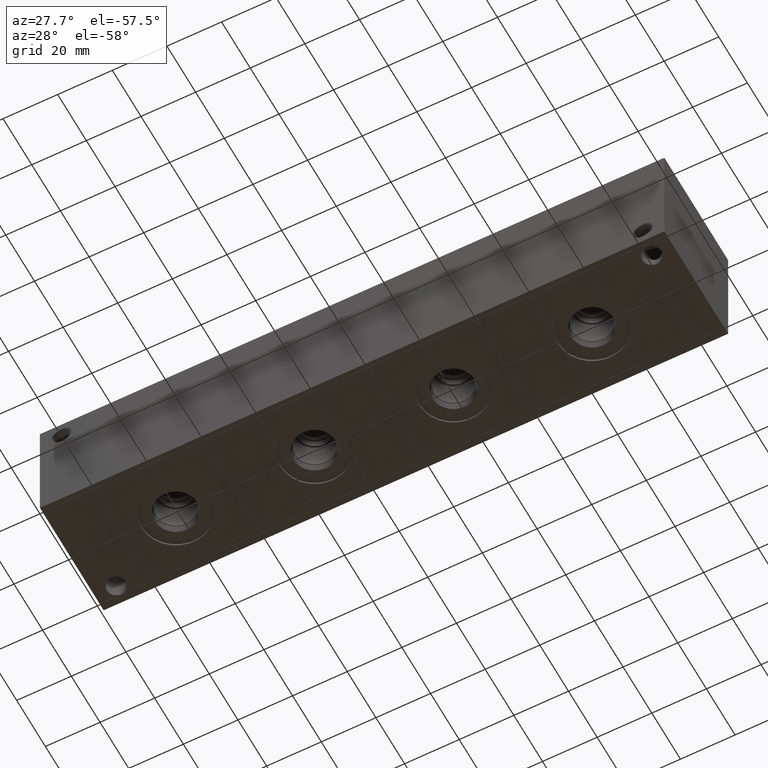
[diagram: clean part render]
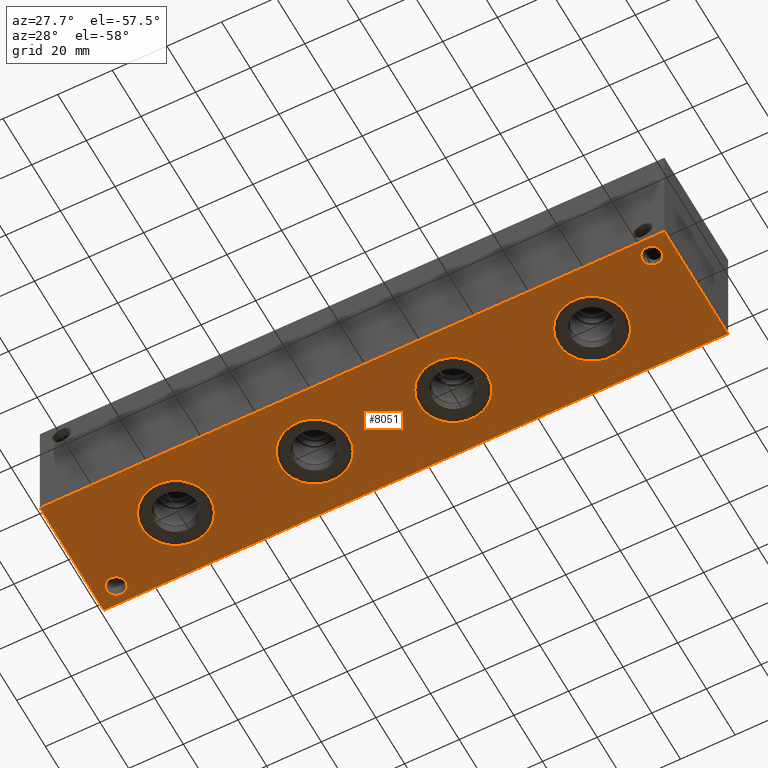
[diagram: same view with one face highlighted and labeled with its STEP entity id]
A machine part, auxiliary view. The second image highlights one B-rep face of the part: STEP entity #8051.
In plain terms, the highlighted planar face has unit normal (0, 0, 1).
Its self-contained STEP definition (entity closure, byte-faithful):
#114=CIRCLE('',#8288,12.5095);
#115=CIRCLE('',#8289,12.5095);
#125=CIRCLE('',#8304,12.5095);
#126=CIRCLE('',#8305,12.5095);
#136=CIRCLE('',#8320,12.5095);
#137=CIRCLE('',#8321,12.5095);
#180=CIRCLE('',#8393,12.5095);
#181=CIRCLE('',#8394,12.5095);
#241=CIRCLE('',#8500,3.5687);
#242=CIRCLE('',#8502,3.5687);
#321=FACE_BOUND('',#1443,.T.);
#322=FACE_BOUND('',#1444,.T.);
#323=FACE_BOUND('',#1445,.T.);
#324=FACE_BOUND('',#1446,.T.);
#325=FACE_BOUND('',#1447,.T.);
#326=FACE_BOUND('',#1448,.T.);
#557=PLANE('',#8548);
#972=FACE_OUTER_BOUND('',#1442,.T.);
#1442=EDGE_LOOP('',(#7215,#7216,#7217,#7218));
#1443=EDGE_LOOP('',(#7219,#7220));
#1444=EDGE_LOOP('',(#7221,#7222));
#1445=EDGE_LOOP('',(#7223,#7224));
#1446=EDGE_LOOP('',(#7225,#7226));
#1447=EDGE_LOOP('',(#7227));
#1448=EDGE_LOOP('',(#7228));
#2177=LINE('',#13874,#2913);
#2180=LINE('',#13879,#2916);
#2182=LINE('',#13883,#2918);
#2184=LINE('',#13886,#2920);
#2913=VECTOR('',#10235,10.);
#2916=VECTOR('',#10240,10.);
#2918=VECTOR('',#10244,10.);
#2920=VECTOR('',#10248,10.);
#3713=VERTEX_POINT('',#13372);
#3714=VERTEX_POINT('',#13373);
#3724=VERTEX_POINT('',#13403);
#3725=VERTEX_POINT('',#13404);
#3735=VERTEX_POINT('',#13434);
#3736=VERTEX_POINT('',#13435);
#3783=VERTEX_POINT('',#13579);
#3784=VERTEX_POINT('',#13580);
#3848=VERTEX_POINT('',#13782);
#3849=VERTEX_POINT('',#13786);
#3877=VERTEX_POINT('',#13872);
#3878=VERTEX_POINT('',#13873);
#3879=VERTEX_POINT('',#13878);
#3880=VERTEX_POINT('',#13882);
#4749=EDGE_CURVE('',#3713,#3714,#114,.T.);
#4750=EDGE_CURVE('',#3714,#3713,#115,.T.);
#4764=EDGE_CURVE('',#3724,#3725,#125,.T.);
#4765=EDGE_CURVE('',#3725,#3724,#126,.T.);
#4779=EDGE_CURVE('',#3735,#3736,#136,.T.);
#4780=EDGE_CURVE('',#3736,#3735,#137,.T.);
#4847=EDGE_CURVE('',#3783,#3784,#180,.T.);
#4848=EDGE_CURVE('',#3784,#3783,#181,.T.);
#4948=EDGE_CURVE('',#3848,#3848,#241,.T.);
#4950=EDGE_CURVE('',#3849,#3849,#242,.T.);
#4989=EDGE_CURVE('',#3877,#3878,#2177,.T.);
#4992=EDGE_CURVE('',#3879,#3877,#2180,.T.);
#4994=EDGE_CURVE('',#3880,#3879,#2182,.T.);
#4996=EDGE_CURVE('',#3878,#3880,#2184,.T.);
#7215=ORIENTED_EDGE('',*,*,#4996,.F.);
#7216=ORIENTED_EDGE('',*,*,#4989,.F.);
#7217=ORIENTED_EDGE('',*,*,#4992,.F.);
#7218=ORIENTED_EDGE('',*,*,#4994,.F.);
#7219=ORIENTED_EDGE('',*,*,#4749,.T.);
#7220=ORIENTED_EDGE('',*,*,#4750,.T.);
#7221=ORIENTED_EDGE('',*,*,#4764,.T.);
#7222=ORIENTED_EDGE('',*,*,#4765,.T.);
#7223=ORIENTED_EDGE('',*,*,#4779,.T.);
#7224=ORIENTED_EDGE('',*,*,#4780,.T.);
#7225=ORIENTED_EDGE('',*,*,#4847,.T.);
#7226=ORIENTED_EDGE('',*,*,#4848,.T.);
#7227=ORIENTED_EDGE('',*,*,#4948,.T.);
#7228=ORIENTED_EDGE('',*,*,#4950,.T.);
#8051=ADVANCED_FACE('',(#972,#321,#322,#323,#324,#325,#326),#557,.F.);
#8288=AXIS2_PLACEMENT_3D('',#13374,#9643,#9644);
#8289=AXIS2_PLACEMENT_3D('',#13375,#9645,#9646);
#8304=AXIS2_PLACEMENT_3D('',#13405,#9679,#9680);
#8305=AXIS2_PLACEMENT_3D('',#13406,#9681,#9682);
#8320=AXIS2_PLACEMENT_3D('',#13436,#9715,#9716);
#8321=AXIS2_PLACEMENT_3D('',#13437,#9717,#9718);
#8393=AXIS2_PLACEMENT_3D('',#13581,#9885,#9886);
#8394=AXIS2_PLACEMENT_3D('',#13582,#9887,#9888);
#8500=AXIS2_PLACEMENT_3D('',#13784,#10131,#10132);
#8502=AXIS2_PLACEMENT_3D('',#13788,#10136,#10137);
#8548=AXIS2_PLACEMENT_3D('',#13888,#10251,#10252);
#9643=DIRECTION('center_axis',(0.,0.,1.));
#9644=DIRECTION('ref_axis',(1.,0.,0.));
#9645=DIRECTION('center_axis',(0.,0.,1.));
#9646=DIRECTION('ref_axis',(1.,0.,0.));
#9679=DIRECTION('center_axis',(0.,0.,1.));
#9680=DIRECTION('ref_axis',(1.,0.,0.));
#9681=DIRECTION('center_axis',(0.,0.,1.));
#9682=DIRECTION('ref_axis',(1.,0.,0.));
#9715=DIRECTION('center_axis',(0.,0.,1.));
#9716=DIRECTION('ref_axis',(1.,0.,0.));
#9717=DIRECTION('center_axis',(0.,0.,1.));
#9718=DIRECTION('ref_axis',(1.,0.,0.));
#9885=DIRECTION('center_axis',(0.,0.,1.));
#9886=DIRECTION('ref_axis',(1.,0.,0.));
#9887=DIRECTION('center_axis',(0.,0.,1.));
#9888=DIRECTION('ref_axis',(1.,0.,0.));
#10131=DIRECTION('center_axis',(0.,0.,1.));
#10132=DIRECTION('ref_axis',(1.,0.,0.));
#10136=DIRECTION('center_axis',(0.,0.,1.));
#10137=DIRECTION('ref_axis',(1.,0.,0.));
#10235=DIRECTION('',(0.,-1.,0.));
#10240=DIRECTION('',(-1.,0.,0.));
#10244=DIRECTION('',(0.,1.,0.));
#10248=DIRECTION('',(1.,0.,0.));
#10251=DIRECTION('center_axis',(0.,0.,1.));
#10252=DIRECTION('ref_axis',(1.,0.,0.));
#13372=CARTESIAN_POINT('',(152.2095,22.225,0.));
#13373=CARTESIAN_POINT('',(127.1905,22.225,0.));
#13374=CARTESIAN_POINT('Origin',(139.7,22.225,0.));
#13375=CARTESIAN_POINT('Origin',(139.7,22.225,0.));
#13403=CARTESIAN_POINT('',(203.0095,22.225,0.));
#13404=CARTESIAN_POINT('',(177.9905,22.225,0.));
#13405=CARTESIAN_POINT('Origin',(190.5,22.225,0.));
#13406=CARTESIAN_POINT('Origin',(190.5,22.225,0.));
#13434=CARTESIAN_POINT('',(101.4095,22.225,0.));
#13435=CARTESIAN_POINT('',(76.3905,22.225,0.));
#13436=CARTESIAN_POINT('Origin',(88.9,22.225,0.));
#13437=CARTESIAN_POINT('Origin',(88.9,22.225,0.));
#13579=CARTESIAN_POINT('',(50.6095,22.225,0.));
#13580=CARTESIAN_POINT('',(25.5905,22.225,0.));
#13581=CARTESIAN_POINT('Origin',(38.1,22.225,0.));
#13582=CARTESIAN_POINT('Origin',(38.1,22.225,0.));
#13782=CARTESIAN_POINT('',(217.1065,6.35,0.));
#13784=CARTESIAN_POINT('Origin',(220.6752,6.35,0.));
#13786=CARTESIAN_POINT('',(4.3561,38.1,0.));
#13788=CARTESIAN_POINT('Origin',(7.9248,38.1,0.));
#13872=CARTESIAN_POINT('',(0.,44.45,0.));
#13873=CARTESIAN_POINT('',(0.,0.,0.));
#13874=CARTESIAN_POINT('',(0.,44.45,0.));
#13878=CARTESIAN_POINT('',(228.6,44.45,0.));
#13879=CARTESIAN_POINT('',(228.6,44.45,0.));
#13882=CARTESIAN_POINT('',(228.6,0.,0.));
#13883=CARTESIAN_POINT('',(228.6,0.,0.));
#13886=CARTESIAN_POINT('',(0.,0.,0.));
#13888=CARTESIAN_POINT('Origin',(114.3,22.225,0.));